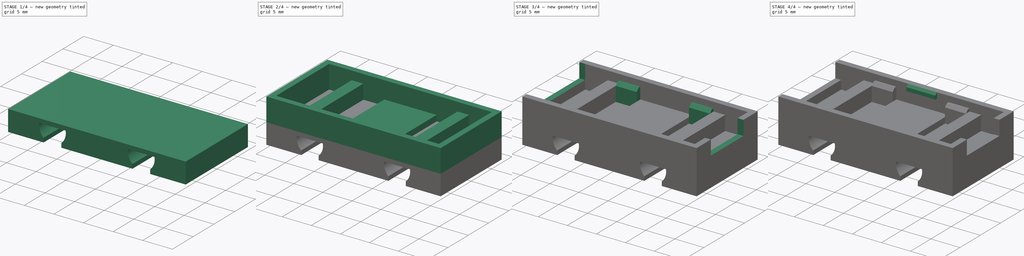
[diagram: build sequence overview — one tinted view per stage of 4, left to right]
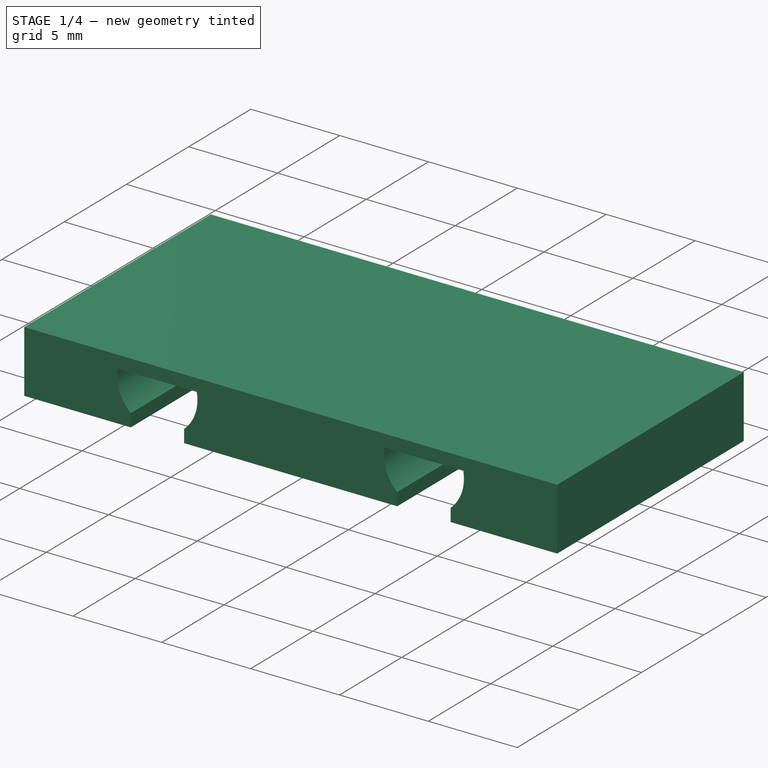
[diagram: stage 1 of 4 — iso view after this stage's code; geometry added in this stage tinted green]
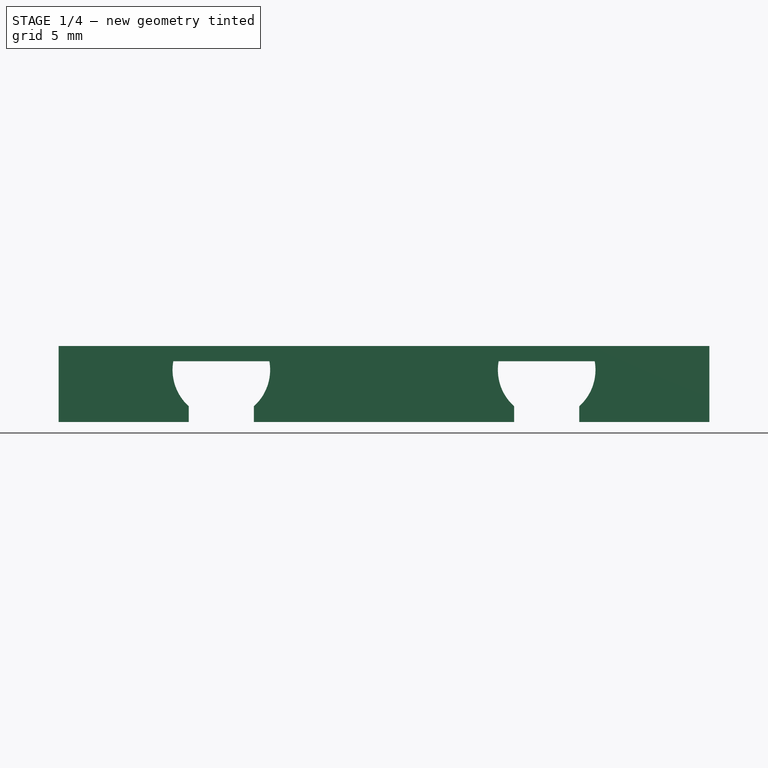
[diagram: stage 1 of 4 — front view after this stage's code; geometry added in this stage tinted green]
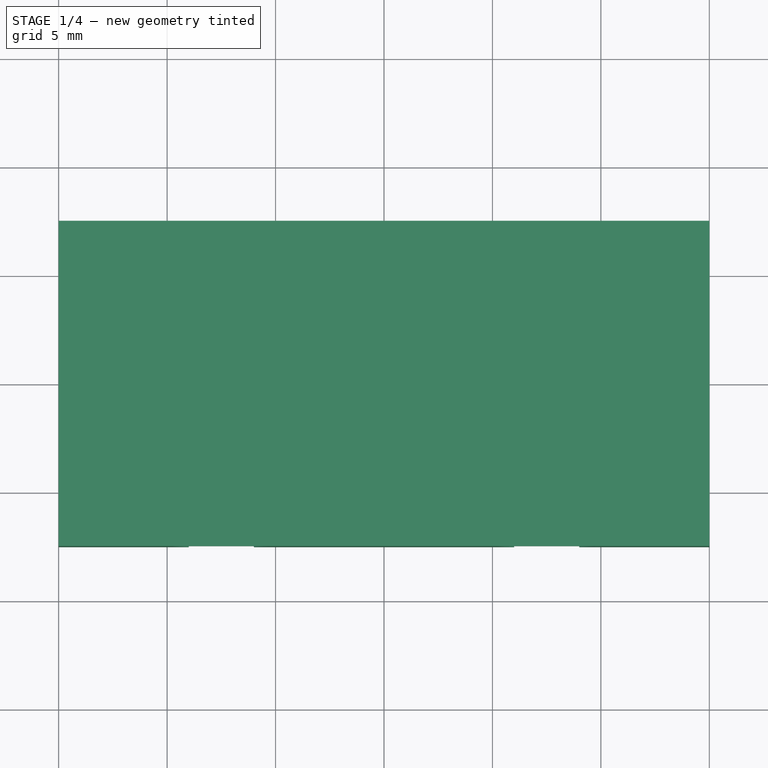
[diagram: stage 1 of 4 — top view after this stage's code; geometry added in this stage tinted green]
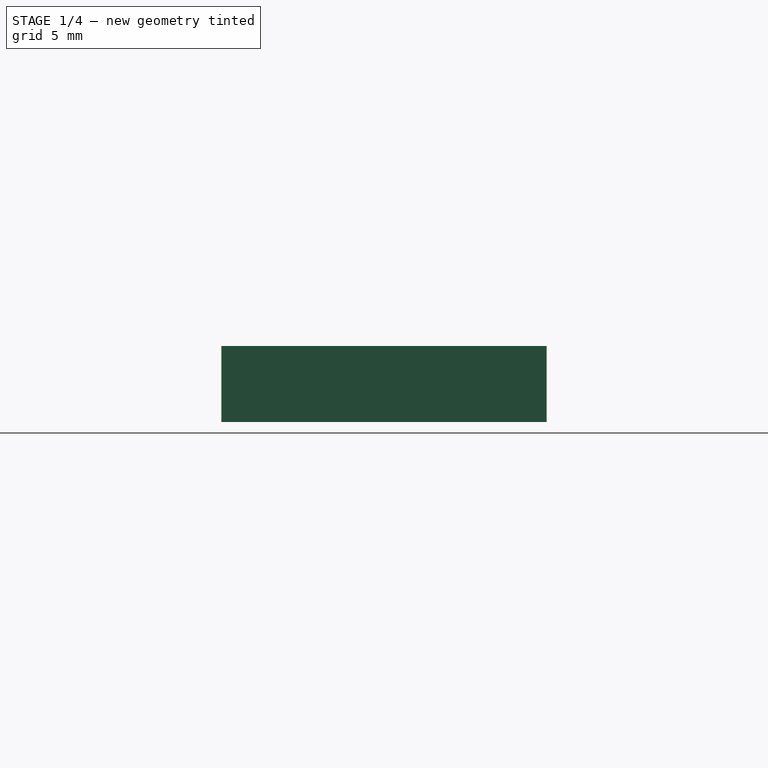
[diagram: stage 1 of 4 — right view after this stage's code; geometry added in this stage tinted green]
FCSTD DOCUMENT  (FreeCAD 0.17R13522 (Git))
Label: bottom
License: All rights reserved
LicenseURL: http://en.wikipedia.org/wiki/All_rights_reserved
objects: Sketcher::SketchObject×9, PartDesign::Pad×6, PartDesign::Pocket×3, PartDesign::Chamfer×2, PartDesign::LinearPattern×1, PartDesign::Mirrored×1, PartDesign::Body×1
note: 32 computed .brp shape members not serialized (recipe doc carries the construction recipe); baked Part::Feature solids carry a one-line shape summary decoded from their .brp

FEATURE [Sketcher::SketchObject] Sketch
  MapMode = 5
  Support = -> [XY_Plane]
  sketch-geometry (4):
    g0: LineSegment StartX=-15 StartY=7.5 StartZ=0 EndX=15 EndY=7.5 EndZ=0
    g1: LineSegment StartX=15 StartY=7.5 StartZ=0 EndX=15 EndY=-7.5 EndZ=0
    g2: LineSegment StartX=15 StartY=-7.5 StartZ=0 EndX=-15 EndY=-7.5 EndZ=0
    g3: LineSegment StartX=-15 StartY=-7.5 StartZ=0 EndX=-15 EndY=7.5 EndZ=0
  constraints (12):
    c: Coincident(g0,g1)
    c: Coincident(g1,g2)
    c: Coincident(g2,g3)
    c: Coincident(g3,g0)
    c: Horizontal(g0)
    c: Horizontal(g2)
    c: Vertical(g1)
    c: Vertical(g3)
    c: Symmetric(g0,g0,g-2)
    c: Symmetric(g2,g0,g-1)
    c: DistanceX(g0,g0) = 30
    c: DistanceY(g3,g3) = 15
FEATURE [PartDesign::Pad] Pad
  Length = 3.5
  Length2 = 100
  Profile = -> Sketch
  Type = 0
FEATURE [Sketcher::SketchObject] Sketch001
  MapMode = 5
  Placement = pos=(0,-7.5,0) rot=(1,0,0;1.5708rad)
  Support = -> [Pad]
  sketch-geometry (7):
    g0: LineSegment StartX=-9 StartY=0 StartZ=0 EndX=-9 EndY=0.722949 EndZ=0
    g1: LineSegment StartX=-9 StartY=0 StartZ=0 EndX=-6 EndY=0 EndZ=0
    g2: LineSegment StartX=-6 StartY=0 StartZ=0 EndX=-6 EndY=0.722949 EndZ=0
    g3: ArcOfCircle CenterX=-7.5 CenterY=2.4 CenterZ=0 NormalX=0 NormalY=0 NormalZ=1 AngleXU=0 Radius=2.25 StartAngle=2.96286 EndAngle=3.98266
    g4: ArcOfCircle CenterX=-7.5 CenterY=2.4 CenterZ=0 NormalX=0 NormalY=0 NormalZ=1 AngleXU=0 Radius=2.25 StartAngle=5.44212 EndAngle=6.46191
    g5: LineSegment StartX=-9.71416 StartY=2.8 StartZ=0 EndX=-5.28584 EndY=2.8 EndZ=0
    g6: LineSegment [constr] StartX=-9 StartY=0.722949 StartZ=0 EndX=-6 EndY=0.722949 EndZ=0
  constraints (21):
    c: PointOnObject(g0,g-1)
    c: Coincident(g1,g0)
    c: Horizontal(g1)
    c: Coincident(g2,g1)
    c: Vertical(g2)
    c: Vertical(g0)
    c: DistanceX(g1,g1) = 3
    c: Coincident(g3,g0)
    c: Coincident(g4,g3)
    c: Coincident(g4,g2)
    c: Radius(g4) = 2.25
    c: Equal(g4,g3)
    c: Coincident(g5,g3)
    c: Coincident(g5,g4)
    c: Horizontal(g5)
    c: DistanceY(g1,g3) = 2.4
    c: DistanceY(g1,g4) = 2.8
    c: Coincident(g6,g0)
    c: Coincident(g6,g2)
    c: Horizontal(g6)
    c: DistanceX(g3,g-1) = 7.5
FEATURE [PartDesign::Pocket] Pocket
  BaseFeature = -> Pad
  Length = 5
  Length2 = 100
  Profile = -> Sketch001
  Type = 1
FEATURE [PartDesign::LinearPattern] LinearPattern
  BaseFeature = -> Pocket
  Direction = -> Sketch001 [H_Axis]
  Length = 15
  Occurrences = 2
  Originals = -> [Pocket]
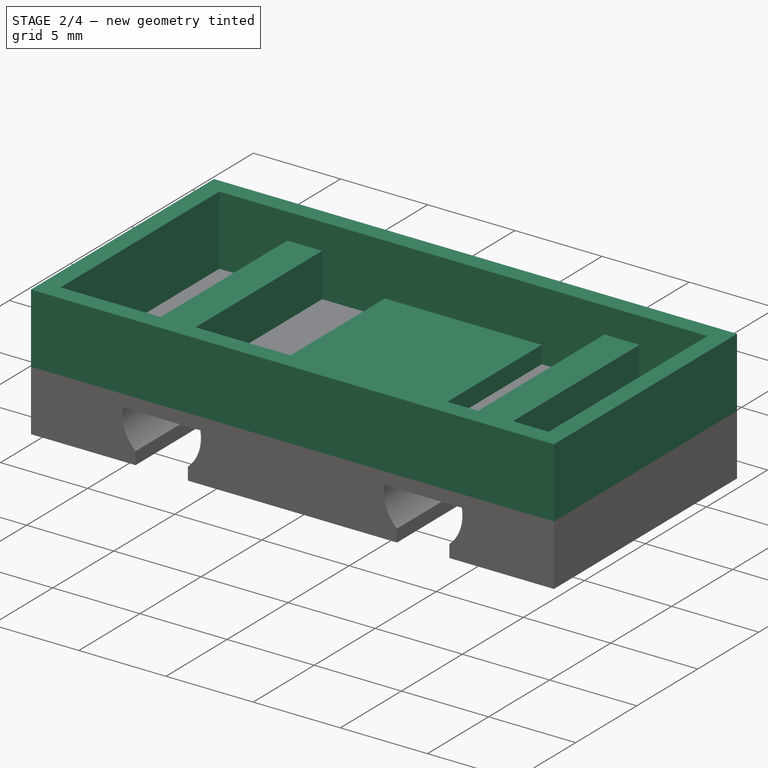
[diagram: stage 2 of 4 — iso view after this stage's code; geometry added in this stage tinted green]
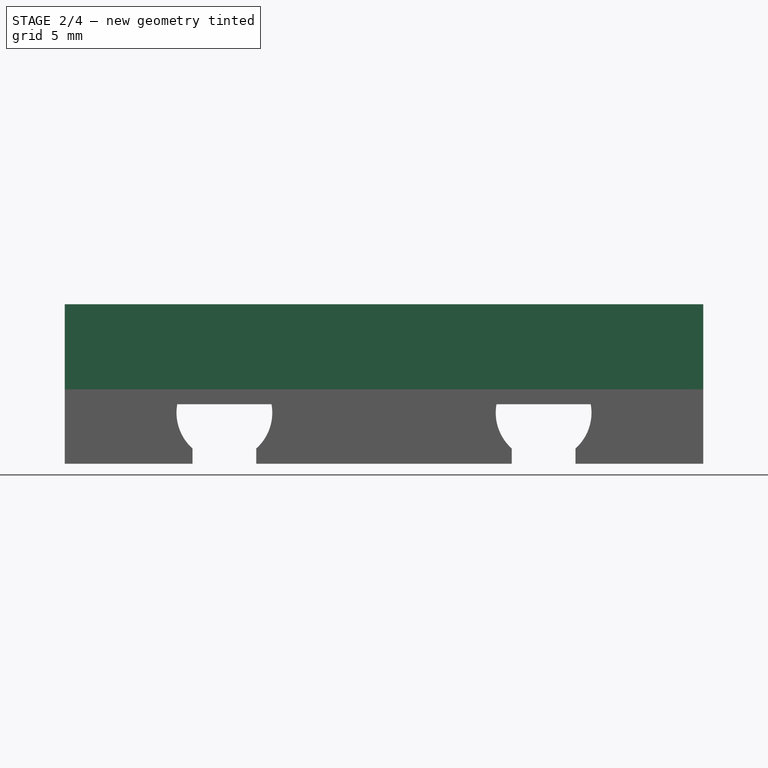
[diagram: stage 2 of 4 — front view after this stage's code; geometry added in this stage tinted green]
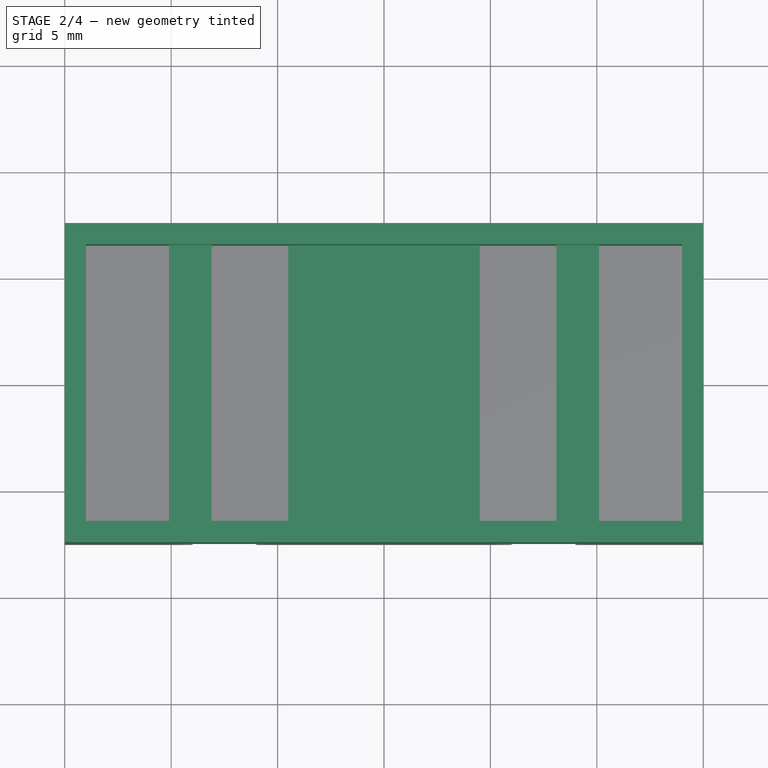
[diagram: stage 2 of 4 — top view after this stage's code; geometry added in this stage tinted green]
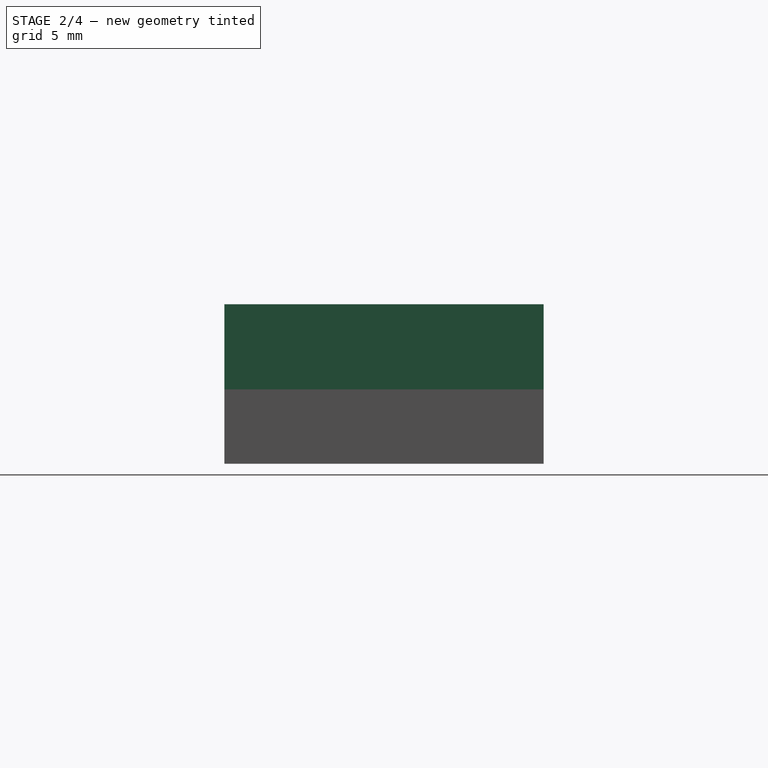
[diagram: stage 2 of 4 — right view after this stage's code; geometry added in this stage tinted green]
FEATURE [Sketcher::SketchObject] Sketch002
  MapMode = 5
  Placement = pos=(0,0,3.5) rot=(0,0,1;0rad)
  Support = -> [LinearPattern]
  sketch-geometry (8):
    g0: LineSegment StartX=-15 StartY=7.5 StartZ=0 EndX=15 EndY=7.5 EndZ=0
    g1: LineSegment StartX=15 StartY=7.5 StartZ=0 EndX=15 EndY=-7.5 EndZ=0
    g2: LineSegment StartX=15 StartY=-7.5 StartZ=0 EndX=-15 EndY=-7.5 EndZ=0
    g3: LineSegment StartX=-15 StartY=-7.5 StartZ=0 EndX=-15 EndY=7.5 EndZ=0
    g4: LineSegment StartX=-14 StartY=6.5 StartZ=0 EndX=14 EndY=6.5 EndZ=0
    g5: LineSegment StartX=14 StartY=6.5 StartZ=0 EndX=14 EndY=-6.5 EndZ=0
    g6: LineSegment StartX=14 StartY=-6.5 StartZ=0 EndX=-14 EndY=-6.5 EndZ=0
    g7: LineSegment StartX=-14 StartY=-6.5 StartZ=0 EndX=-14 EndY=6.5 EndZ=0
  constraints (24):
    c: Coincident(g0,g1)
    c: Coincident(g1,g2)
    c: Coincident(g2,g3)
    c: Coincident(g3,g0)
    c: Horizontal(g0)
    c: Horizontal(g2)
    c: Vertical(g1)
    c: Vertical(g3)
    c: Coincident(g4,g5)
    c: Coincident(g5,g6)
    c: Coincident(g6,g7)
    c: Coincident(g7,g4)
    c: Horizontal(g4)
    c: Horizontal(g6)
    c: Vertical(g5)
    c: Vertical(g7)
    c: Symmetric(g0,g0,g-2)
    c: Symmetric(g0,g2,g-1)
    c: DistanceX(g0,g0) = 30
    c: DistanceY(g3,g3) = 15
    c: Symmetric(g4,g4,g-2)
    c: Symmetric(g4,g6,g-1)
    c: DistanceX(g0,g4) = 1
    c: DistanceY(g4,g0) = 1
FEATURE [PartDesign::Pad] Pad001
  BaseFeature = -> LinearPattern
  Length = 4
  Length2 = 100
  Profile = -> Sketch002
  Type = 0
FEATURE [Sketcher::SketchObject] Sketch003
  MapMode = 5
  Placement = pos=(0,0,3.5) rot=(0,0,1;0rad)
  Support = -> [Pad001]
  sketch-geometry (4):
    g0: LineSegment StartX=-4.5 StartY=6.5 StartZ=0 EndX=4.5 EndY=6.5 EndZ=0
    g1: LineSegment StartX=4.5 StartY=6.5 StartZ=0 EndX=4.5 EndY=-6.5 EndZ=0
    g2: LineSegment StartX=4.5 StartY=-6.5 StartZ=0 EndX=-4.5 EndY=-6.5 EndZ=0
    g3: LineSegment StartX=-4.5 StartY=-6.5 StartZ=0 EndX=-4.5 EndY=6.5 EndZ=0
  constraints (12):
    c: Coincident(g0,g1)
    c: Coincident(g1,g2)
    c: Coincident(g2,g3)
    c: Coincident(g3,g0)
    c: Horizontal(g0)
    c: Horizontal(g2)
    c: Vertical(g1)
    c: Vertical(g3)
    c: Symmetric(g0,g0,g-2)
    c: Symmetric(g2,g0,g-1)
    c: DistanceX(g0,g0) = 9
    c: DistanceY(g3,g3) = 13
FEATURE [PartDesign::Pad] Pad002
  BaseFeature = -> Pad001
  Length = 1
  Length2 = 100
  Profile = -> Sketch003
  Type = 0
FEATURE [Sketcher::SketchObject] Sketch004
  MapMode = 5
  Placement = pos=(0,0,3.5) rot=(0,0,1;0rad)
  Support = -> [Pad002]
  sketch-geometry (10):
    g0: LineSegment StartX=-10.1 StartY=6.5 StartZ=0 EndX=-8.1 EndY=6.5 EndZ=0
    g1: LineSegment StartX=-8.1 StartY=6.5 StartZ=0 EndX=-8.1 EndY=-6.5 EndZ=0
    g2: LineSegment StartX=-8.1 StartY=-6.5 StartZ=0 EndX=-10.1 EndY=-6.5 EndZ=0
    g3: LineSegment StartX=-10.1 StartY=-6.5 StartZ=0 EndX=-10.1 EndY=6.5 EndZ=0
    g4: LineSegment StartX=8.1 StartY=6.5 StartZ=0 EndX=10.1 EndY=6.5 EndZ=0
    g5: LineSegment StartX=10.1 StartY=6.5 StartZ=0 EndX=10.1 EndY=-6.5 EndZ=0
    g6: LineSegment StartX=10.1 StartY=-6.5 StartZ=0 EndX=8.1 EndY=-6.5 EndZ=0
    g7: LineSegment StartX=8.1 StartY=-6.5 StartZ=0 EndX=8.1 EndY=6.5 EndZ=0
    g8: LineSegment [constr] StartX=-8.1 StartY=6.5 StartZ=0 EndX=8.1 EndY=6.5 EndZ=0
    g9: LineSegment [constr] StartX=-8.1 StartY=-6.5 StartZ=0 EndX=8.1 EndY=-6.5 EndZ=0
  constraints (27):
    c: Coincident(g0,g1)
    c: Coincident(g1,g2)
    c: Coincident(g2,g3)
    c: Coincident(g3,g0)
    c: Horizontal(g0)
    c: Horizontal(g2)
    c: Vertical(g1)
    c: Vertical(g3)
    c: Coincident(g4,g5)
    c: Coincident(g5,g6)
    c: Coincident(g6,g7)
    c: Coincident(g7,g4)
    c: Horizontal(g4)
    c: Horizontal(g6)
    c: Vertical(g5)
    c: Vertical(g7)
    c: Coincident(g8,g0)
    c: Coincident(g8,g4)
    c: Symmetric(g0,g2,g-1)
    c: Coincident(g9,g1)
    c: Coincident(g9,g6)
    c: Horizontal(g9)
    c: Symmetric(g0,g4,g-2)
    c: Symmetric(g0,g4,g-2)
    c: DistanceX(g0,g0) = 2
    c: DistanceY(g3,g3) = 13
    c: DistanceX(g0,g4) = 16.2
FEATURE [PartDesign::Pad] Pad003
  BaseFeature = -> Pad002
  Length = 2.5
  Length2 = 100
  Profile = -> Sketch004
  Type = 0
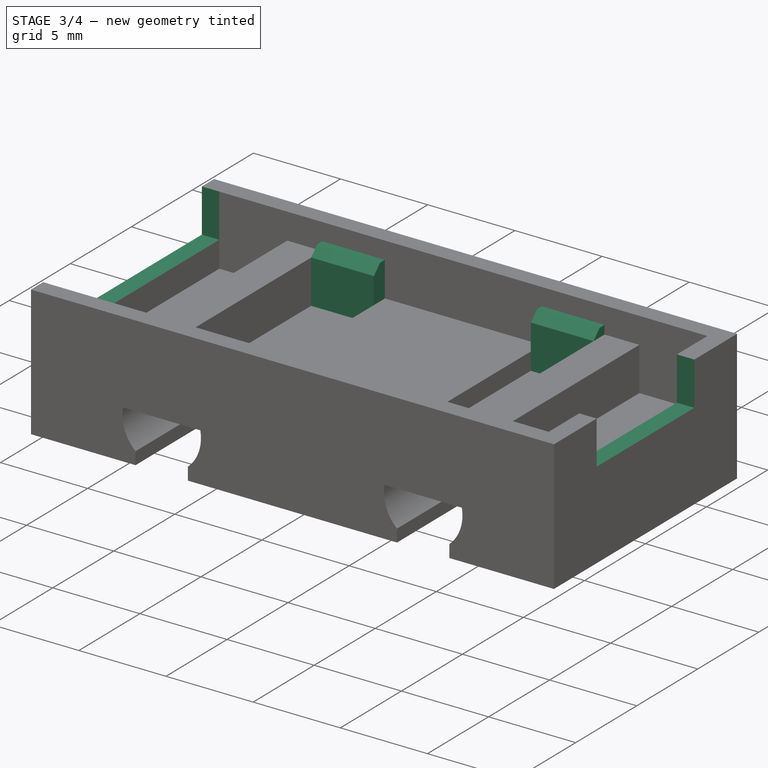
[diagram: stage 3 of 4 — iso view after this stage's code; geometry added in this stage tinted green]
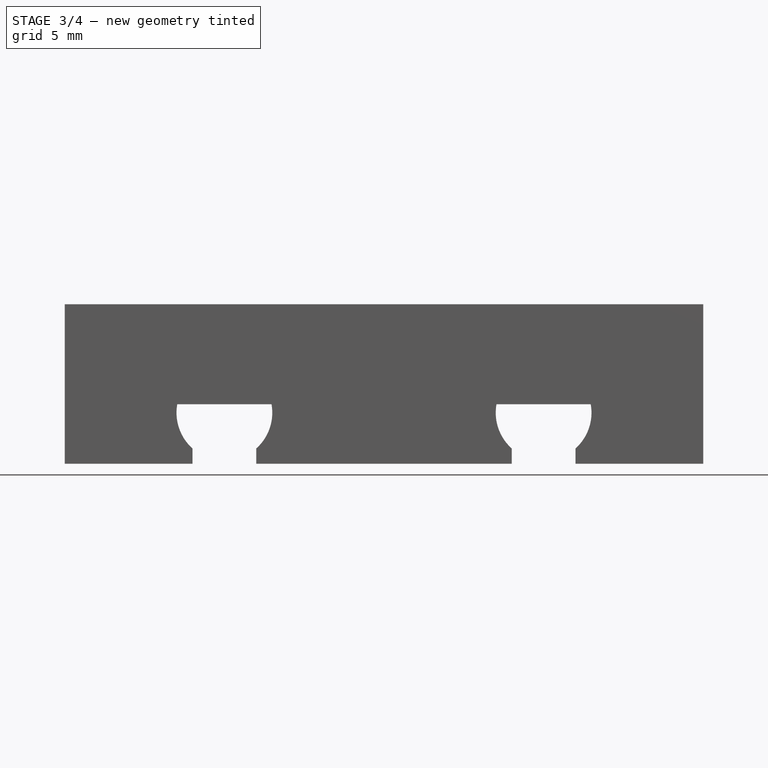
[diagram: stage 3 of 4 — front view after this stage's code; geometry added in this stage tinted green]
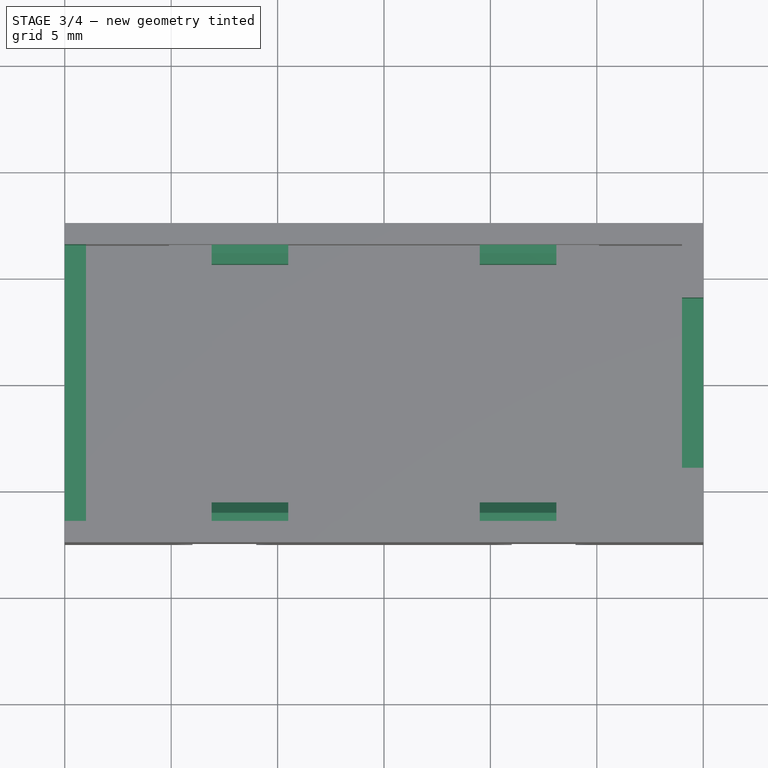
[diagram: stage 3 of 4 — top view after this stage's code; geometry added in this stage tinted green]
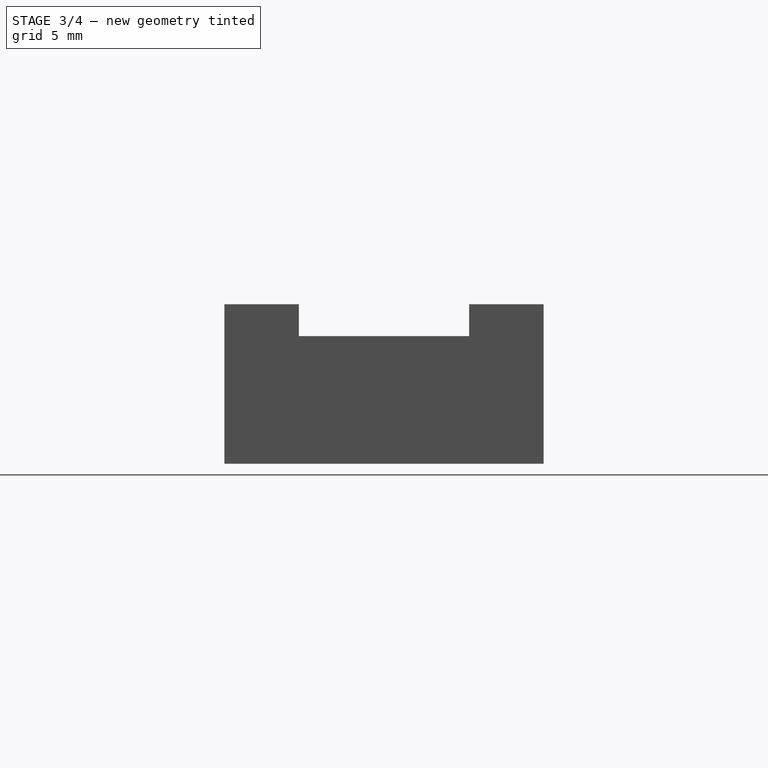
[diagram: stage 3 of 4 — right view after this stage's code; geometry added in this stage tinted green]
FEATURE [Sketcher::SketchObject] Sketch005
  MapMode = 5
  Placement = pos=(0,0,3.5) rot=(0,0,1;0rad)
  Support = -> [Pad003]
  sketch-geometry (24):
    g0: LineSegment StartX=-8.1 StartY=5.6 StartZ=0 EndX=-4.5 EndY=5.6 EndZ=0
    g1: LineSegment StartX=-4.5 StartY=5.6 StartZ=0 EndX=-4.5 EndY=6.5 EndZ=0
    g2: LineSegment StartX=-4.5 StartY=6.5 StartZ=0 EndX=-8.1 EndY=6.5 EndZ=0
    g3: LineSegment StartX=-8.1 StartY=6.5 StartZ=0 EndX=-8.1 EndY=5.6 EndZ=0
    g4: LineSegment StartX=4.5 StartY=5.6 StartZ=0 EndX=8.1 EndY=5.6 EndZ=0
    g5: LineSegment StartX=8.1 StartY=5.6 StartZ=0 EndX=8.1 EndY=6.5 EndZ=0
    g6: LineSegment StartX=8.1 StartY=6.5 StartZ=0 EndX=4.5 EndY=6.5 EndZ=0
    g7: LineSegment StartX=4.5 StartY=6.5 StartZ=0 EndX=4.5 EndY=5.6 EndZ=0
    g8: LineSegment StartX=-8.1 StartY=-6.5 StartZ=0 EndX=-4.5 EndY=-6.5 EndZ=0
    g9: LineSegment StartX=-4.5 StartY=-6.5 StartZ=0 EndX=-4.5 EndY=-5.6 EndZ=0
    g10: LineSegment StartX=-4.5 StartY=-5.6 StartZ=0 EndX=-8.1 EndY=-5.6 EndZ=0
    g11: LineSegment StartX=-8.1 StartY=-5.6 StartZ=0 EndX=-8.1 EndY=-6.5 EndZ=0
    g12: LineSegment StartX=4.5 StartY=-6.5 StartZ=0 EndX=8.1 EndY=-6.5 EndZ=0
    g13: LineSegment StartX=8.1 StartY=-6.5 StartZ=0 EndX=8.1 EndY=-5.6 EndZ=0
    g14: LineSegment StartX=8.1 StartY=-5.6 StartZ=0 EndX=4.5 EndY=-5.6 EndZ=0
    g15: LineSegment StartX=4.5 StartY=-5.6 StartZ=0 EndX=4.5 EndY=-6.5 EndZ=0
    g16: LineSegment [constr] StartX=-8.1 StartY=5.6 StartZ=0 EndX=8.1 EndY=5.6 EndZ=0
    g17: LineSegment [constr] StartX=8.1 StartY=5.6 StartZ=0 EndX=8.1 EndY=-5.6 EndZ=0
    g18: LineSegment [constr] StartX=8.1 StartY=-5.6 StartZ=0 EndX=-8.1 EndY=-5.6 EndZ=0
    g19: LineSegment [constr] StartX=-8.1 StartY=-5.6 StartZ=0 EndX=-8.1 EndY=5.6 EndZ=0
    g20: LineSegment [constr] StartX=-4.5 StartY=6.5 StartZ=0 EndX=4.5 EndY=6.5 EndZ=0
    g21: LineSegment [constr] StartX=4.5 StartY=6.5 StartZ=0 EndX=4.5 EndY=-6.5 EndZ=0
    g22: LineSegment [constr] StartX=4.5 StartY=-6.5 StartZ=0 EndX=-4.5 EndY=-6.5 EndZ=0
    g23: LineSegment [constr] StartX=-4.5 StartY=-6.5 StartZ=0 EndX=-4.5 EndY=6.5 EndZ=0
  constraints (64):
    c: Coincident(g0,g1)
    c: Coincident(g1,g2)
    c: Coincident(g2,g3)
    c: Coincident(g3,g0)
    c: Horizontal(g0)
    c: Horizontal(g2)
    c: Vertical(g1)
    c: Vertical(g3)
    c: Coincident(g4,g5)
    c: Coincident(g5,g6)
    c: Coincident(g6,g7)
    c: Coincident(g7,g4)
    c: Horizontal(g4)
    c: Horizontal(g6)
    c: Vertical(g5)
    c: Vertical(g7)
    c: Coincident(g8,g9)
    c: Coincident(g9,g10)
    c: Coincident(g10,g11)
    c: Coincident(g11,g8)
    c: Horizontal(g8)
    c: Horizontal(g10)
    c: Vertical(g9)
    c: Vertical(g11)
    c: Coincident(g12,g13)
    c: Coincident(g13,g14)
    c: Coincident(g14,g15)
    c: Coincident(g15,g12)
    c: Horizontal(g12)
    c: Horizontal(g14)
    c: Vertical(g13)
    c: Vertical(g15)
    c: Coincident(g16,g17)
    c: Coincident(g17,g18)
    c: Horizontal(g16)
    c: Horizontal(g18)
    c: Vertical(g17)
    c: Coincident(g17,g13)
    c: Coincident(g16,g4)
    c: Coincident(g20,g21)
    c: Coincident(g21,g22)
    c: Coincident(g22,g23)
    c: Coincident(g23,g20)
    c: Horizontal(g20)
    c: Horizontal(g22)
    c: Vertical(g21)
    c: Vertical(g23)
    c: Coincident(g20,g1)
    c: Coincident(g21,g12)
    c: Coincident(g6,g20)
    c: Coincident(g22,g8)
    c: Symmetric(g0,g10,g-1)
    c: Coincident(g0,g16)
    c: Coincident(g19,g0)
    c: Vertical(g19)
    c: Coincident(g18,g19)
    c: Coincident(g18,g10)
    c: Symmetric(g1,g6,g-2)
    c: DistanceX(g0,g0) = 3.6
    c: DistanceY(g19,g19) = 11.2
    c: Symmetric(g8,g2,g-1)
    c: Symmetric(g2,g5,g-2)
    c: DistanceY(g8,g2) = 13
    c: DistanceX(g20,g20) = 9
FEATURE [PartDesign::Pad] Pad004
  BaseFeature = -> Pad003
  Length = 3
  Length2 = 100
  Profile = -> Sketch005
  Type = 0
FEATURE [PartDesign::Chamfer] Chamfer
  Base = -> Pad004 [Edge121,Edge126,Edge113,Edge102]
  BaseFeature = -> Pad004
  Size = 0.5
FEATURE [Sketcher::SketchObject] Sketch006
  MapMode = 5
  Placement = pos=(-15,0,0) rot=(0.57735,-0.57735,-0.57735;2.0944rad)
  Support = -> [Chamfer]
  sketch-geometry (4):
    g0: LineSegment StartX=-6.5 StartY=7.5 StartZ=0 EndX=6.5 EndY=7.5 EndZ=0
    g1: LineSegment StartX=6.5 StartY=7.5 StartZ=0 EndX=6.5 EndY=5 EndZ=0
    g2: LineSegment StartX=6.5 StartY=5 StartZ=0 EndX=-6.5 EndY=5 EndZ=0
    g3: LineSegment StartX=-6.5 StartY=5 StartZ=0 EndX=-6.5 EndY=7.5 EndZ=0
  constraints (12):
    c: Coincident(g0,g1)
    c: Coincident(g1,g2)
    c: Coincident(g2,g3)
    c: Coincident(g3,g0)
    c: Horizontal(g0)
    c: Horizontal(g2)
    c: Vertical(g1)
    c: Vertical(g3)
    c: Symmetric(g0,g0,g-2)
    c: DistanceX(g0,g0) = 13
    c: DistanceY(g-1,g1) = 5
    c: DistanceY(g1,g1) = 2.5
FEATURE [PartDesign::Pocket] Pocket001
  BaseFeature = -> Chamfer
  Length = 5
  Length2 = 100
  Profile = -> Sketch006
  Type = 2
FEATURE [Sketcher::SketchObject] Sketch007
  MapMode = 5
  Placement = pos=(15,0,0) rot=(0.57735,0.57735,0.57735;2.0944rad)
  Support = -> [Pocket001]
  sketch-geometry (4):
    g0: LineSegment StartX=-4 StartY=7.5 StartZ=0 EndX=4 EndY=7.5 EndZ=0
    g1: LineSegment StartX=4 StartY=7.5 StartZ=0 EndX=4 EndY=5 EndZ=0
    g2: LineSegment StartX=4 StartY=5 StartZ=0 EndX=-4 EndY=5 EndZ=0
    g3: LineSegment StartX=-4 StartY=5 StartZ=0 EndX=-4 EndY=7.5 EndZ=0
  constraints (12):
    c: Coincident(g0,g1)
    c: Coincident(g1,g2)
    c: Coincident(g2,g3)
    c: Coincident(g3,g0)
    c: Horizontal(g0)
    c: Horizontal(g2)
    c: Vertical(g1)
    c: Vertical(g3)
    c: Symmetric(g0,g0,g-2)
    c: DistanceX(g0,g0) = 8
    c: DistanceY(g-1,g1) = 5
    c: DistanceY(g1,g1) = 2.5
FEATURE [PartDesign::Pocket] Pocket002
  BaseFeature = -> Pocket001
  Length = 5
  Length2 = 100
  Profile = -> Sketch007
  Type = 2
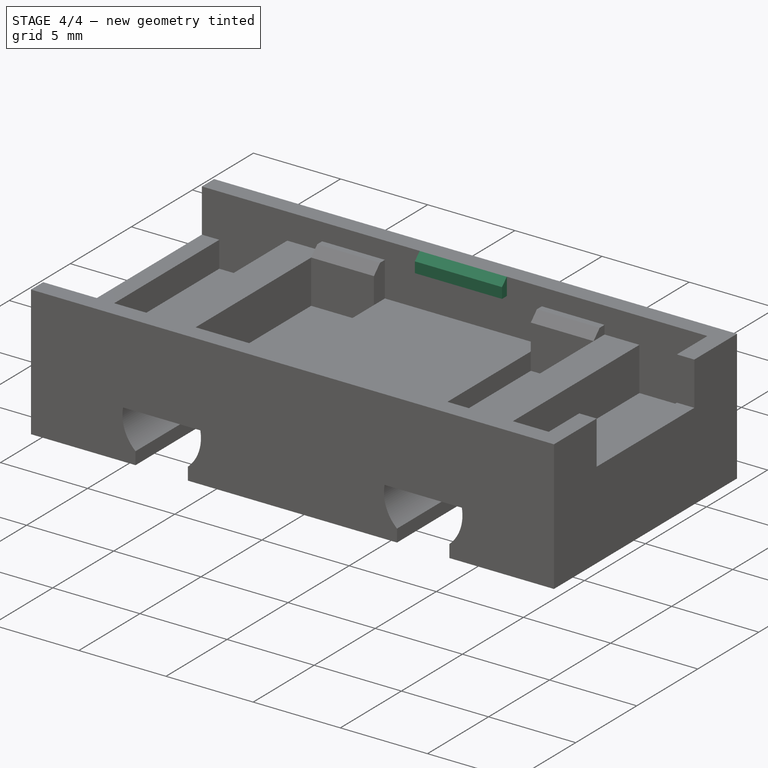
[diagram: stage 4 of 4 — iso view after this stage's code; geometry added in this stage tinted green]
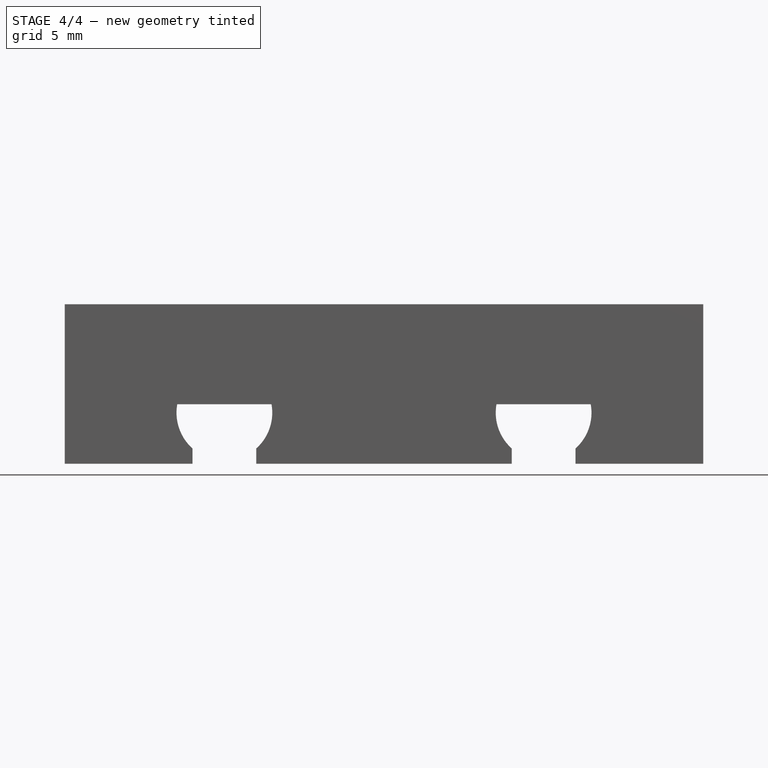
[diagram: stage 4 of 4 — front view after this stage's code; geometry added in this stage tinted green]
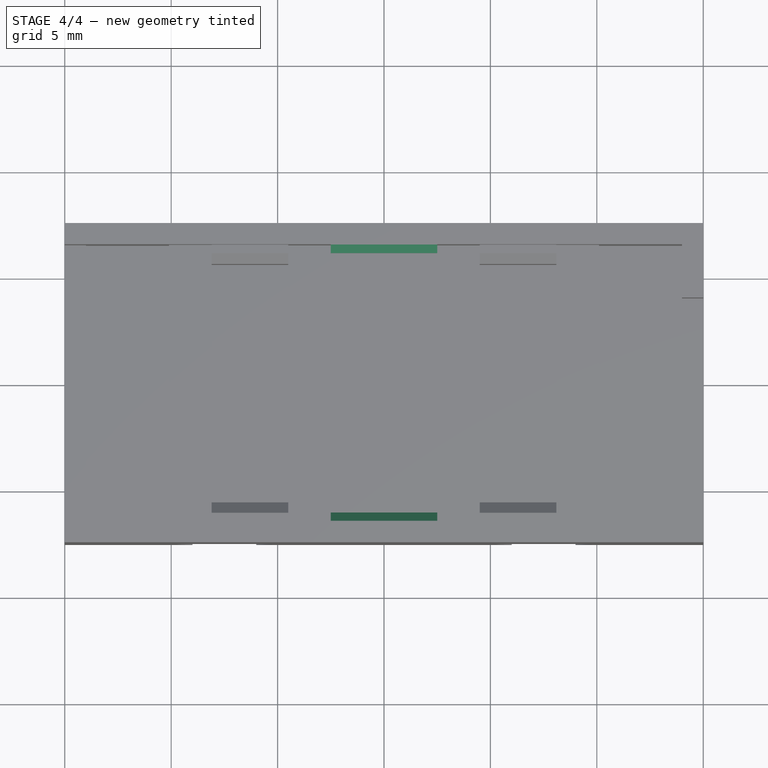
[diagram: stage 4 of 4 — top view after this stage's code; geometry added in this stage tinted green]
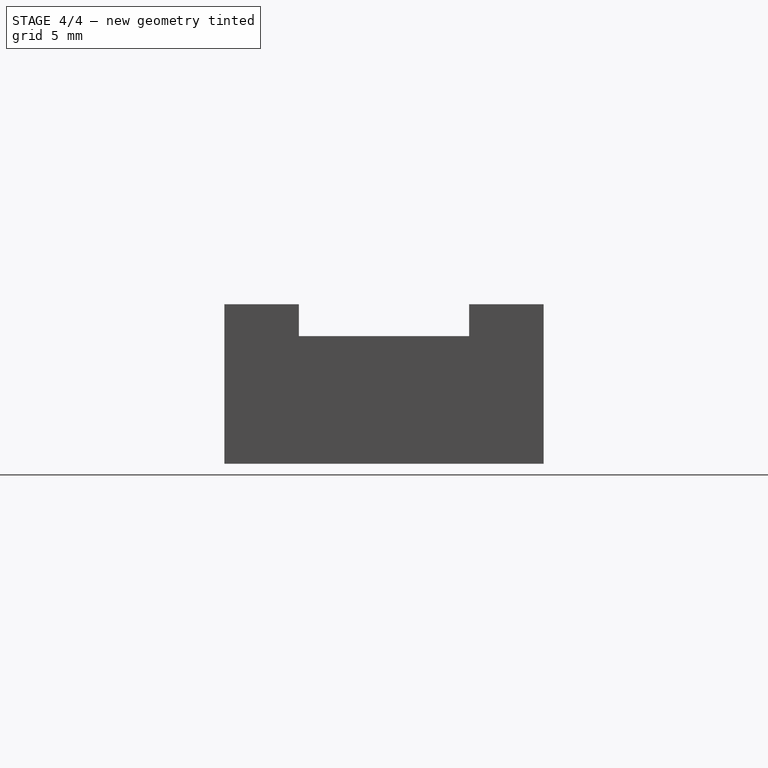
[diagram: stage 4 of 4 — right view after this stage's code; geometry added in this stage tinted green]
FEATURE [Sketcher::SketchObject] Sketch008
  MapMode = 5
  Placement = pos=(0,6.5,0) rot=(1,0,0;1.5708rad)
  Support = -> [Pocket002]
  sketch-geometry (4):
    g0: LineSegment StartX=-2.5 StartY=7.5 StartZ=0 EndX=2.5 EndY=7.5 EndZ=0
    g1: LineSegment StartX=2.5 StartY=7.5 StartZ=0 EndX=2.5 EndY=6.5 EndZ=0
    g2: LineSegment StartX=2.5 StartY=6.5 StartZ=0 EndX=-2.5 EndY=6.5 EndZ=0
    g3: LineSegment StartX=-2.5 StartY=6.5 StartZ=0 EndX=-2.5 EndY=7.5 EndZ=0
  constraints (12):
    c: Coincident(g0,g1)
    c: Coincident(g1,g2)
    c: Coincident(g2,g3)
    c: Coincident(g3,g0)
    c: Horizontal(g0)
    c: Horizontal(g2)
    c: Vertical(g1)
    c: Vertical(g3)
    c: DistanceY(g-1,g0) = 7.5
    c: Symmetric(g0,g0,g-2)
    c: DistanceX(g0,g0) = 5
    c: DistanceY(g1,g1) = 1
FEATURE [PartDesign::Pad] Pad005
  BaseFeature = -> Pocket002
  Length = 0.4
  Length2 = 100
  Profile = -> Sketch008
  Type = 0
FEATURE [PartDesign::Mirrored] Mirrored
  BaseFeature = -> Pad005
  MirrorPlane = -> XZ_Plane
  Originals = -> [Pad005]
FEATURE [PartDesign::Chamfer] Chamfer001
  Base = -> Mirrored [Edge137,Edge175]
  BaseFeature = -> Mirrored
  Size = 0.39
FEATURE [PartDesign::Body] Body
  Group = -> [Sketch,Pad,Sketch001,Pocket,LinearPattern,Sketch002,Pad001,Sketch003,Pad002,Sketch004,Pad003,Sketch005,Pad004,Chamfer,Sketch006,Pocket001,Sketch007,Pocket002,Sketch008,Pad005,Mirrored,Chamfer001]
  Origin = -> Origin
  Tip = -> Chamfer001
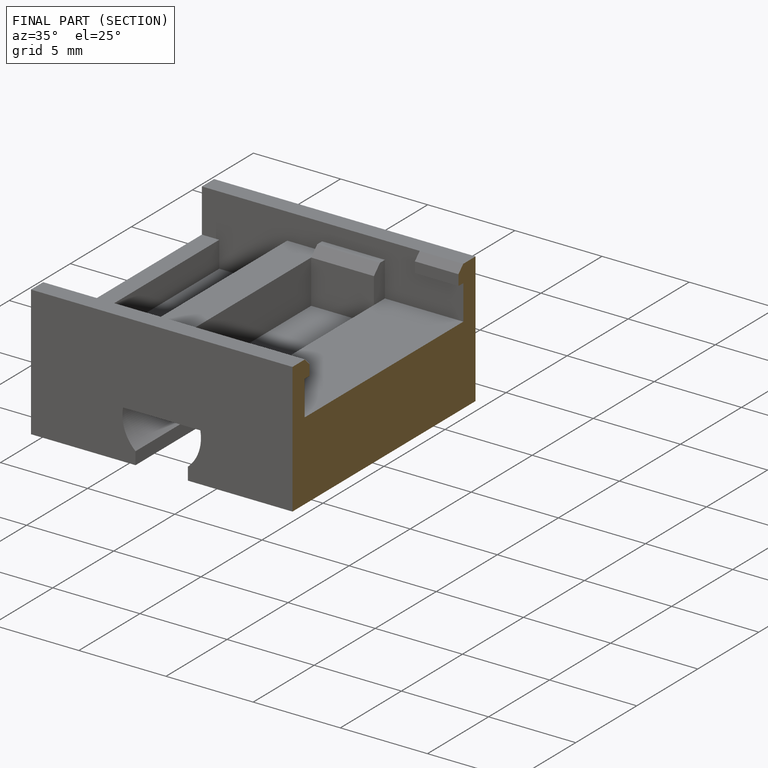
[diagram: finished part — half-section view (interior)]
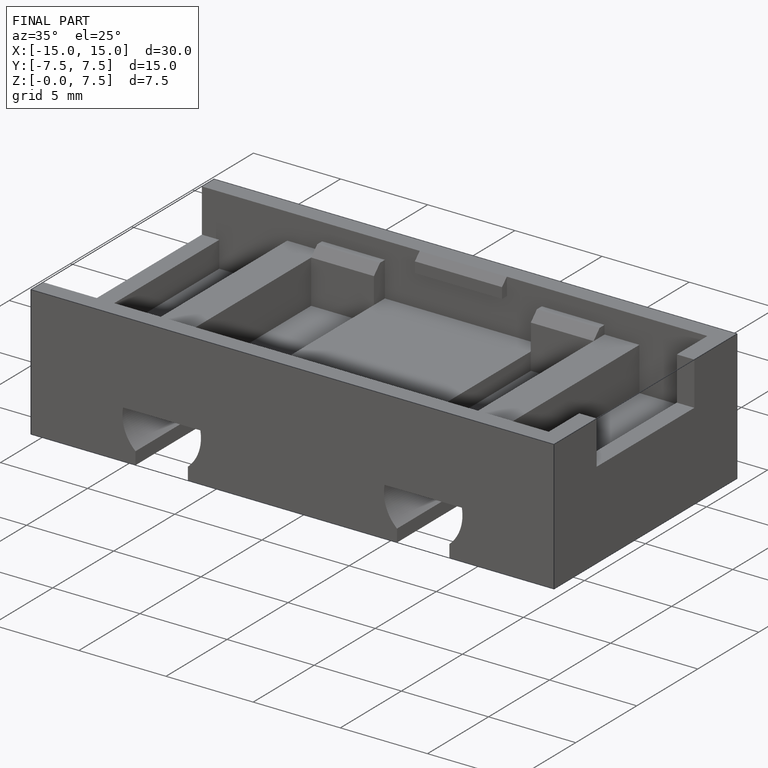
[diagram: finished part — iso view with bounding-box wireframe]
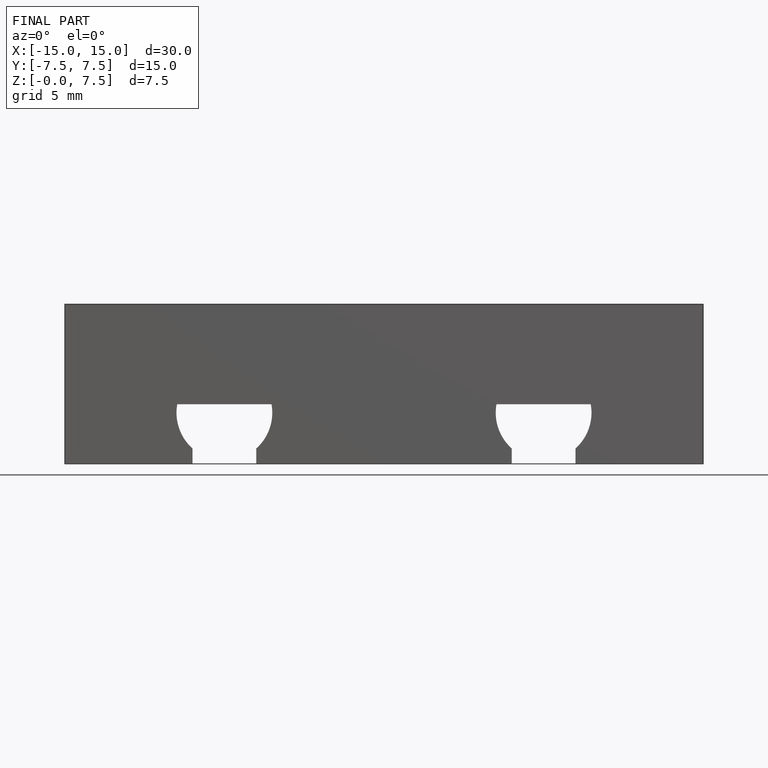
[diagram: finished part — front view with bounding-box wireframe]
